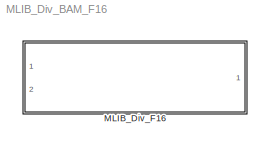
MODEL MLIB_Div_BAM_F16
KIND model
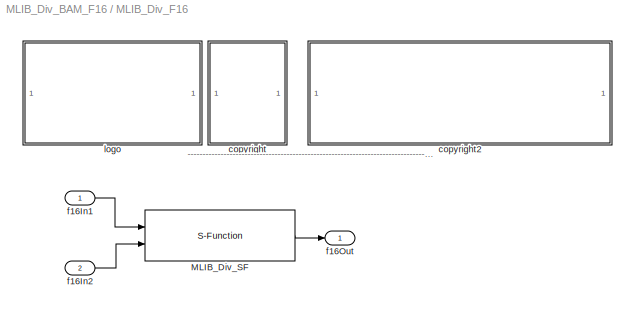
BLOCK [SubSystem] MLIB_Div_F16
  Ports = [2, 1]
  RequestExecContextInheritance = off
  SID = 1
BLOCK [S-Function] MLIB_Div_F16/MLIB_Div_SF
  EnableBusSupport = off
  FunctionName = MLIB_Div_SF_F16
  Ports = [2, 1]
  SID = 4
BLOCK [SubSystem] MLIB_Div_F16/<copyright redacted>
  Ports = []
  RequestExecContextInheritance = off
  SID = 5
BLOCK [SubSystem] MLIB_Div_F16/copyright2
  Ports = []
  RequestExecContextInheritance = off
  SID = 6
BLOCK [Inport] MLIB_Div_F16/f16In1
  IconDisplay = Port number
  SID = 2
BLOCK [Inport] MLIB_Div_F16/f16In2
  IconDisplay = Port number
  Port = 2
  SID = 3
BLOCK [Outport] MLIB_Div_F16/f16Out
  IconDisplay = Port number
  SID = 8
BLOCK [SubSystem] MLIB_Div_F16/logo
  Ports = []
  RequestExecContextInheritance = off
  SID = 7
ANNOTATION MLIB_Div_F16: ---------------------------------------------------------------------------------------------------------------------------------------------------------------------------------------------------
LINE MLIB_Div_F16/MLIB_Div_SF:1 -> MLIB_Div_F16/f16Out:1
LINE MLIB_Div_F16/f16In1:1 -> MLIB_Div_F16/MLIB_Div_SF:1
LINE MLIB_Div_F16/f16In2:1 -> MLIB_Div_F16/MLIB_Div_SF:2
